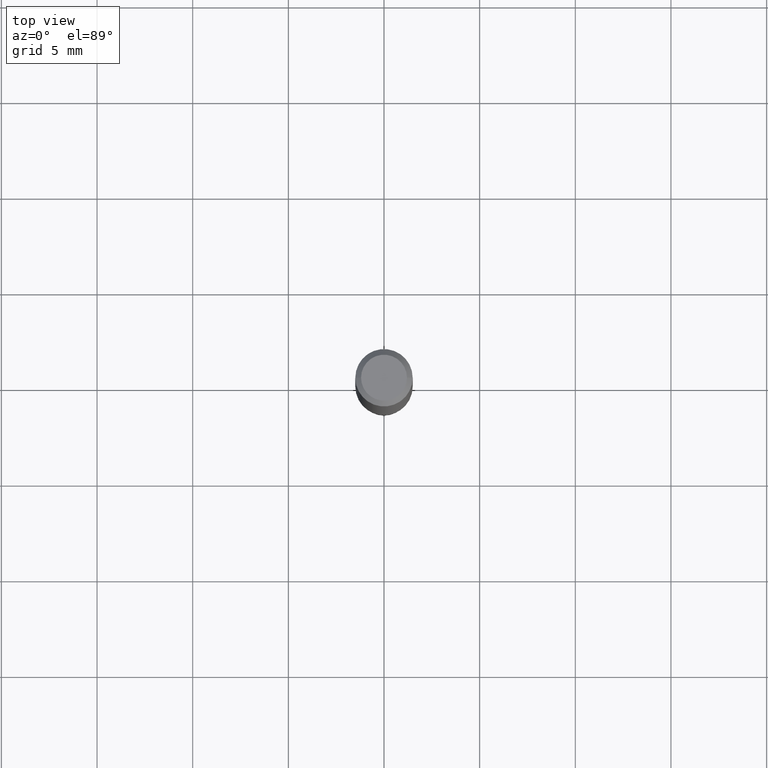
[diagram: clean part render]
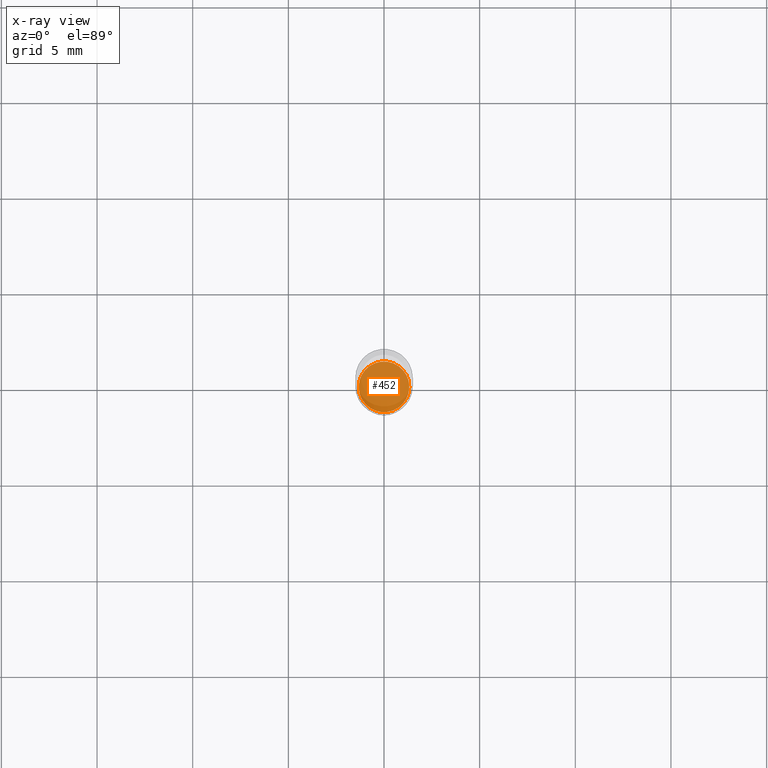
[diagram: x-ray — body ghosted, one internal face saturated and labeled with its STEP entity id]
A machine part, top view, then the same camera in x-ray: the body is ghosted and one INTERNAL B-rep face — a face not visible from any outside direction — is saturated and labeled: STEP entity #452.
In plain terms, the highlighted planar face has unit normal (-0, 0, 1).
Its self-contained STEP definition (entity closure, byte-faithful):
#3 = CARTESIAN_POINT ( 'NONE',  ( -0.05204999999999999211, -3.448939604226579531E-15, -1.094499999999999806 ) ) ;
#9 = DIRECTION ( 'NONE',  ( 1.000000000000000000, -6.982962677686265133E-15, 0.000000000000000000 ) ) ;
#21 = DIRECTION ( 'NONE',  ( -2.438088387897960049E-29, 3.491481338843145188E-15, 1.000000000000000000 ) ) ;
#26 = CARTESIAN_POINT ( 'NONE',  ( 2.676565608369631234E-29, -3.821426325363821984E-15, -1.094499999999999806 ) ) ;
#27 = PLANE ( 'NONE',  #37 ) ;
#37 = AXIS2_PLACEMENT_3D ( 'NONE', #445, #21, #403 ) ;
#103 = DIRECTION ( 'NONE',  ( 1.000000000000000000, -6.982962677686265133E-15, 0.000000000000000000 ) ) ;
#121 = EDGE_LOOP ( 'NONE', ( #357, #207 ) ) ;
#133 = AXIS2_PLACEMENT_3D ( 'NONE', #26, #247, #9 ) ;
#164 = CARTESIAN_POINT ( 'NONE',  ( 0.05204999999999999211, -4.184889532737392438E-15, -1.094499999999999806 ) ) ;
#185 = EDGE_CURVE ( 'NONE', #441, #217, #191, .T. ) ;
#191 = CIRCLE ( 'NONE', #133, 0.05204999999999999211 ) ;
#207 = ORIENTED_EDGE ( 'NONE', *, *, #330, .F. ) ;
#213 = CIRCLE ( 'NONE', #408, 0.05204999999999999211 ) ;
#217 = VERTEX_POINT ( 'NONE', #3 ) ;
#226 = CARTESIAN_POINT ( 'NONE',  ( 2.676565608369631234E-29, -3.821426325363821984E-15, -1.094499999999999806 ) ) ;
#247 = DIRECTION ( 'NONE',  ( -2.445468806185136597E-29, 3.491481338843145583E-15, 1.000000000000000000 ) ) ;
#277 = FACE_OUTER_BOUND ( 'NONE', #121, .T. ) ;
#330 = EDGE_CURVE ( 'NONE', #217, #441, #213, .T. ) ;
#357 = ORIENTED_EDGE ( 'NONE', *, *, #185, .F. ) ;
#384 = DIRECTION ( 'NONE',  ( -2.445468806185136597E-29, 3.491481338843145583E-15, 1.000000000000000000 ) ) ;
#403 = DIRECTION ( 'NONE',  ( 1.000000000000000000, -6.982962677686265922E-15, 4.876176775795935793E-29 ) ) ;
#408 = AXIS2_PLACEMENT_3D ( 'NONE', #226, #384, #103 ) ;
#441 = VERTEX_POINT ( 'NONE', #164 ) ;
#445 = CARTESIAN_POINT ( 'NONE',  ( 4.682243963774227079E-29, -9.491807643018275637E-16, -1.094499999999999806 ) ) ;
#452 = ADVANCED_FACE ( 'NONE', ( #277 ), #27, .F. ) ;